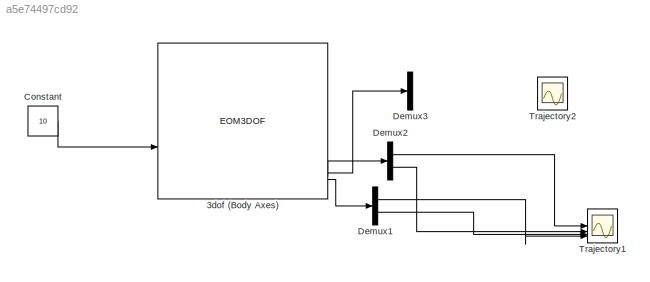
MODEL slx_a5e74497cd92
KIND model
CONFIG AbsTol = auto
CONFIG EnableMultiTasking = off
CONFIG FixedStep = auto
CONFIG MaxStep = auto
CONFIG MinStep = auto
CONFIG RelTol = 1e-3
CONFIG SampleTimeConstraint = Unconstrained
CONFIG SolverName = VariableStepAuto
CONFIG StartTime = 0.0
CONFIG StopTime = 10.0
BLOCK [EOM3DOF] 3dof (Body Axes)
  Iyy = 0.05
  abi_flag = on
  g = 0
  mass = 0.5
  theta_ini = 0.25
  v_ini = 0
BLOCK [Constant] Constant
  Value = 10
BLOCK [Demux] Demux1
  Outputs = 2
BLOCK [Demux] Demux2
  Outputs = 2
BLOCK [Demux] Demux3
  Outputs = 2
BLOCK [Scope] Trajectory1
  Floating = off
  NumInputPorts = 4
  ScopeSpecificationString = Simulink.scopes.TimeScopeBlockCfg('CurrentConfiguration', extmgr.ConfigurationSet(extmgr.Configuration('Core','General UI',true),extmgr.Configuration('Core','Source UI',true),extmgr.Configuration('Sources','WiredSimulink',true,'DataLoggingVariableName','ScopeData1'),extmgr.Configuration('Visuals','Time Domain',true,'SerializedDisplays',{struct('MinYLimReal','-1.00000','MaxYLimReal','1.00000','YLab...<+3792ch>
BLOCK [Scope] Trajectory2
  Floating = off
  NumInputPorts = 2
  ScopeSpecificationString = Simulink.scopes.TimeScopeBlockCfg('CurrentConfiguration', extmgr.ConfigurationSet(extmgr.Configuration('Core','General UI',true),extmgr.Configuration('Core','Source UI',true),extmgr.Configuration('Sources','WiredSimulink',true),extmgr.Configuration('Visuals','Time Domain',true,'SerializedDisplays',{struct('MinYLimReal','-1.00000','MaxYLimReal','1.00000','YLabelReal','','MinYLimMag','0.00000','MaxY...<+3813ch>
LINE 3dof (Body Axes):5 -> Demux3:1
LINE 3dof (Body Axes):6 -> Demux2:1
LINE 3dof (Body Axes):7 -> Demux1:1
LINE Constant:1 -> 3dof (Body Axes):2
LINE Demux1:1 -> Trajectory1:4
LINE Demux1:2 -> Trajectory1:3
LINE Demux2:1 -> Trajectory1:1
LINE Demux2:2 -> Trajectory1:2
